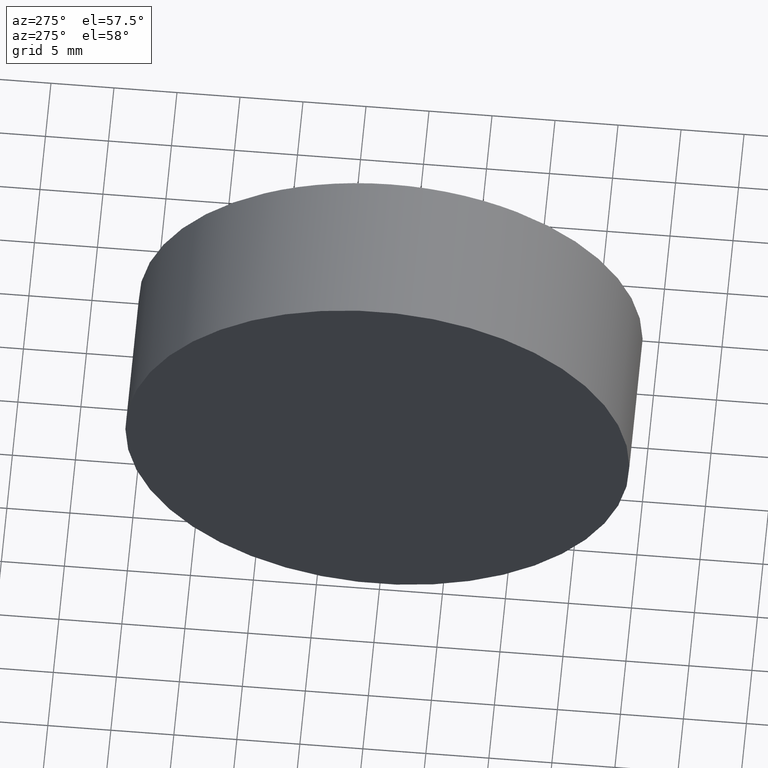
[diagram: clean part render]
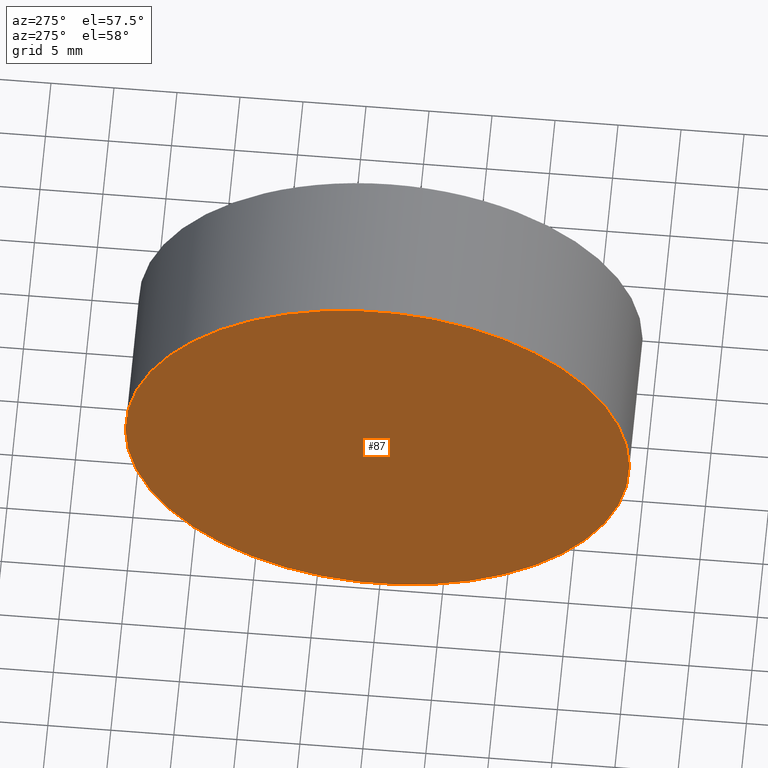
[diagram: same view with one face highlighted and labeled with its STEP entity id]
A machine part, auxiliary view. The second image highlights one B-rep face of the part: STEP entity #87.
In plain terms, the highlighted planar face has unit normal (1, -0, 0).
Its self-contained STEP definition (entity closure, byte-faithful):
#1 = AXIS2_PLACEMENT_3D ( 'NONE', #26, #116, #37 ) ;
#5 = VERTEX_POINT ( 'NONE', #89 ) ;
#23 = AXIS2_PLACEMENT_3D ( 'NONE', #51, #152, #66 ) ;
#25 = DIRECTION ( 'NONE',  ( -6.938893903907227400E-016, -1.000000000000000000, 0.0000000000000000000 ) ) ;
#26 = CARTESIAN_POINT ( 'NONE',  ( 114.9754472601862100, 65.15745182658619700, 0.0000000000000000000 ) ) ;
#27 = CIRCLE ( 'NONE', #133, 20.00000000000000400 ) ;
#37 = DIRECTION ( 'NONE',  ( -6.938893903907227400E-016, -1.000000000000000000, 0.0000000000000000000 ) ) ;
#50 = ORIENTED_EDGE ( 'NONE', *, *, #82, .T. ) ;
#51 = CARTESIAN_POINT ( 'NONE',  ( 114.9754472601862300, 65.15745182658619700, 0.0000000000000000000 ) ) ;
#65 = DIRECTION ( 'NONE',  ( -1.000000000000000000, 6.488933942079480100E-016, -0.0000000000000000000 ) ) ;
#66 = DIRECTION ( 'NONE',  ( 6.488933942079480100E-016, 1.000000000000000000, 0.0000000000000000000 ) ) ;
#78 = ORIENTED_EDGE ( 'NONE', *, *, #107, .T. ) ;
#82 = EDGE_CURVE ( 'NONE', #5, #102, #127, .T. ) ;
#87 = ADVANCED_FACE ( 'NONE', ( #90 ), #135, .F. ) ;
#89 = CARTESIAN_POINT ( 'NONE',  ( 114.9754472601862000, 45.15745182658619000, 0.0000000000000000000 ) ) ;
#90 = FACE_OUTER_BOUND ( 'NONE', #120, .T. ) ;
#102 = VERTEX_POINT ( 'NONE', #113 ) ;
#107 = EDGE_CURVE ( 'NONE', #102, #5, #27, .T. ) ;
#113 = CARTESIAN_POINT ( 'NONE',  ( 114.9754472601862300, 85.15745182658619700, 2.449293598294710100E-015 ) ) ;
#116 = DIRECTION ( 'NONE',  ( -1.000000000000000000, 6.488933942079480100E-016, -0.0000000000000000000 ) ) ;
#120 = EDGE_LOOP ( 'NONE', ( #50, #78 ) ) ;
#127 = CIRCLE ( 'NONE', #1, 20.00000000000000400 ) ;
#133 = AXIS2_PLACEMENT_3D ( 'NONE', #162, #65, #25 ) ;
#135 = PLANE ( 'NONE',  #23 ) ;
#152 = DIRECTION ( 'NONE',  ( 1.000000000000000000, -6.488933942079480100E-016, 0.0000000000000000000 ) ) ;
#162 = CARTESIAN_POINT ( 'NONE',  ( 114.9754472601862100, 65.15745182658619700, 0.0000000000000000000 ) ) ;